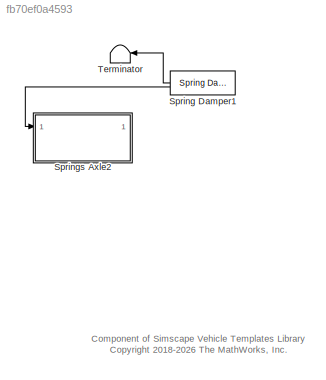
MODEL slx_fb70ef0a4593
KIND library
CONFIG SolverName = VariableStepAuto
BLOCK [Reference] Spring Damper1  REF=sm_car_lib/Inputs/Control Bus/Spring Damper  (lib defined in slx_05426f0848b6, slx_5dc2867fb1c9)
  SourceBlock = sm_car_lib/Inputs/Control Bus/Spring Damper
  SourceType = SubSystem
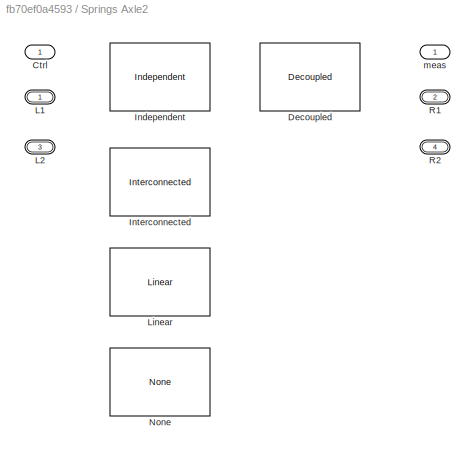
BLOCK [SubSystem] Springs Axle2
  AttributesFormatString = %<ActiveVariant>
  LabelModeActiveChoice = Independent
  Variant = on
  VariantControl = Variant1
  VariantControlMode = label
BLOCK [PMIOPort] Springs Axle2/ L1
  Side = Left
BLOCK [PMIOPort] Springs Axle2/ L2
  Port = 3
  Side = Left
BLOCK [Outport] Springs Axle2/ meas
  VectorParamsAs1DForOutWhenUnconnected = off
BLOCK [Inport] Springs Axle2/Ctrl 
BLOCK [Reference] Springs Axle2/Decoupled  REF=Springs_Axle2_Decoupled/Decoupled
  SourceBlock = Springs_Axle2_Decoupled/Decoupled
  SourceType = Roll and Heave Springs
BLOCK [Reference] Springs Axle2/Independent  REF=Springs_Axle2_Independent/Independent
  SourceBlock = Springs_Axle2_Independent/Independent
  SourceType = Independent Springs
BLOCK [Reference] Springs Axle2/Interconnected  REF=Springs_Axle2_Interconnected/Interconnected
  SourceBlock = Springs_Axle2_Interconnected/Interconnected
  SourceType = Interconnected Springs
BLOCK [Reference] Springs Axle2/Linear  REF=Springs_Axle2_Linear/Linear
  SourceBlock = Springs_Axle2_Linear/Linear
  SourceType = SubSystem
BLOCK [Reference] Springs Axle2/None  REF=Springs_Axle2_None/None
  SourceBlock = Springs_Axle2_None/None
  SourceType = Spring System Placeholder
BLOCK [PMIOPort] Springs Axle2/R1
  Port = 2
  Side = Right
BLOCK [PMIOPort] Springs Axle2/R2
  Port = 4
  Side = Right
BLOCK [Terminator] Terminator
ANNOTATION (root): Component of Simscape Vehicle Templates Library <copyright redacted>
LINE Spring Damper1:1 -> Terminator:1
LINE Spring Damper1:2 -> Springs Axle2:1
